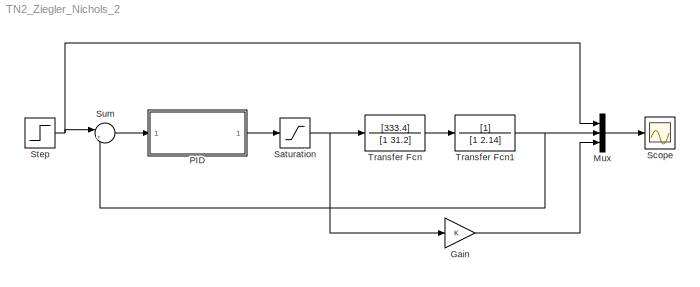
MODEL TN2_Ziegler_Nichols_2
KIND model
BLOCK [Gain] Gain
  OutDataType = fixdt(1, 16)
  OutDataTypeMode = Inherit via internal rule
  OutDataTypeStr = Inherit: Inherit via internal rule
  OutScaling = 2^0
  ParamDataTypeStr = Inherit: Inherit via internal rule
  ParameterDataType = fixdt(1, 16)
  ParameterDataTypeMode = Inherit via internal rule
  ParameterScaling = 2^0
  SID = 6
  SaturateOnIntegerOverflow = off
BLOCK [Mux] Mux
  DisplayOption = bar
  Inputs = 3
  Ports = [3, 1]
  SID = 7
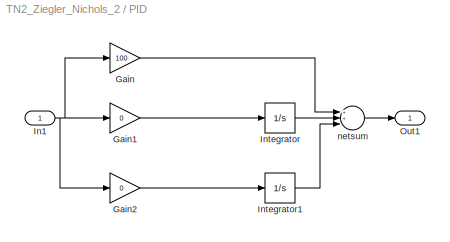
BLOCK [SubSystem] PID
  FunctionWithSeparateData = off
  MaskHideContents = off
  MinAlgLoopOccurrences = off
  Opaque = off
  Ports = [1, 1]
  PropExecContextOutsideSubsystem = off
  RTWSystemCode = Auto
  RequestExecContextInheritance = off
  SID = 8
BLOCK [Gain] PID/Gain
  Gain = 100
  OutDataType = fixdt(1, 16)
  OutDataTypeMode = Inherit via internal rule
  OutDataTypeStr = Inherit: Inherit via internal rule
  OutScaling = 2^0
  ParamDataTypeStr = Inherit: Inherit via internal rule
  ParameterDataType = fixdt(1, 16)
  ParameterDataTypeMode = Inherit via internal rule
  ParameterScaling = 2^0
  SID = 10
  SaturateOnIntegerOverflow = off
BLOCK [Gain] PID/Gain1
  Gain = 0
  OutDataType = fixdt(1, 16)
  OutDataTypeMode = Inherit via internal rule
  OutDataTypeStr = Inherit: Inherit via internal rule
  OutScaling = 2^0
  ParamDataTypeStr = Inherit: Inherit via internal rule
  ParameterDataType = fixdt(1, 16)
  ParameterDataTypeMode = Inherit via internal rule
  ParameterScaling = 2^0
  SID = 11
  SaturateOnIntegerOverflow = off
BLOCK [Gain] PID/Gain2
  Gain = 0
  OutDataType = fixdt(1, 16)
  OutDataTypeMode = Inherit via internal rule
  OutDataTypeStr = Inherit: Inherit via internal rule
  OutScaling = 2^0
  ParamDataTypeStr = Inherit: Inherit via internal rule
  ParameterDataType = fixdt(1, 16)
  ParameterDataTypeMode = Inherit via internal rule
  ParameterScaling = 2^0
  SID = 12
  SaturateOnIntegerOverflow = off
BLOCK [Inport] PID/In1
  IconDisplay = Port number
  OutDataType = fixdt(1, 16)
  OutScaling = 2^0
  SID = 9
BLOCK [Integrator] PID/Integrator
  Ports = [1, 1]
  SID = 13
BLOCK [Integrator] PID/Integrator1
  Ports = [1, 1]
  SID = 14
BLOCK [Outport] PID/Out1
  IconDisplay = Port number
  OutDataType = fixdt(1, 16)
  OutScaling = 2^0
  SID = 16
BLOCK [Sum] PID/netsum
  Inputs = 3
  OutDataType = sfix(16)
  OutScaling = 2^0
  Ports = [3, 1]
  SID = 15
BLOCK [Saturate] Saturation
  LowerLimit = -30
  OutDataType = fixdt(1, 16)
  OutScaling = 2^0
  SID = 17
  UpperLimit = 30
BLOCK [Scope] Scope
  DataFormat = StructureWithTime
  Floating = off
  NumInputPorts = 1
  Ports = [1]
  SID = 18
  SampleTime = 0
  TimeRange = 0.001638400000000928
  YMax = 110
  YMin = -30
  ZoomMode = yonly
BLOCK [Step] Step
  After = 100
  SID = 19
  SampleTime = 0
  Time = 0
BLOCK [Sum] Sum
  IconShape = round
  InputSameDT = off
  Inputs = |+-
  OutDataType = fixdt(1, 16)
  OutDataTypeMode = Inherit via internal rule
  OutDataTypeStr = Inherit: Inherit via internal rule
  OutScaling = 2^0
  Ports = [2, 1]
  SID = 20
  SaturateOnIntegerOverflow = off
BLOCK [TransferFcn] Transfer Fcn
  Denominator = [1 31.2]
  Numerator = [333.4]
  SID = 21
BLOCK [TransferFcn] Transfer Fcn1
  Denominator = [1 2.14]
  SID = 22
LINE Gain:1 -> Mux:3
LINE Mux:1 -> Scope:1
LINE PID/Gain1:1 -> PID/Integrator:1
LINE PID/Gain2:1 -> PID/Integrator1:1
LINE PID/Gain:1 -> PID/netsum:1
NET PID/In1:1 -> PID/Gain1:1, PID/Gain2:1, PID/Gain:1
LINE PID/Integrator1:1 -> PID/netsum:3
LINE PID/Integrator:1 -> PID/netsum:2
LINE PID/netsum:1 -> PID/Out1:1
LINE PID:1 -> Saturation:1
NET Saturation:1 -> Gain:1, Transfer Fcn:1
NET Step:1 -> Mux:1, Sum:1
LINE Sum:1 -> PID:1
NET Transfer Fcn1:1 -> Mux:2, Sum:2
LINE Transfer Fcn:1 -> Transfer Fcn1:1
note: NET lines group one-source signal fan-out (src -> all destinations, sorted); 1:1 wires keep LINE
